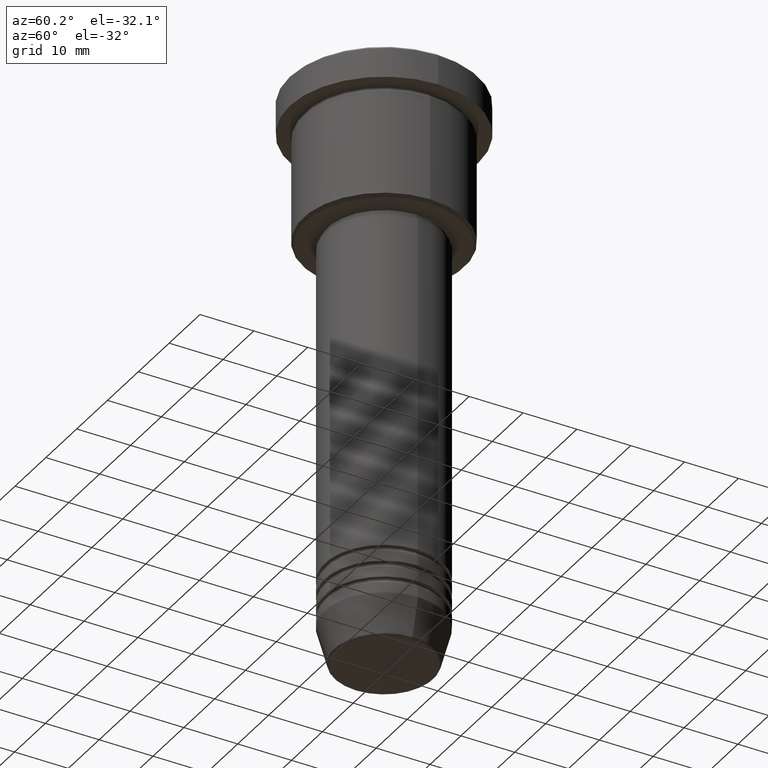
[diagram: clean part render]
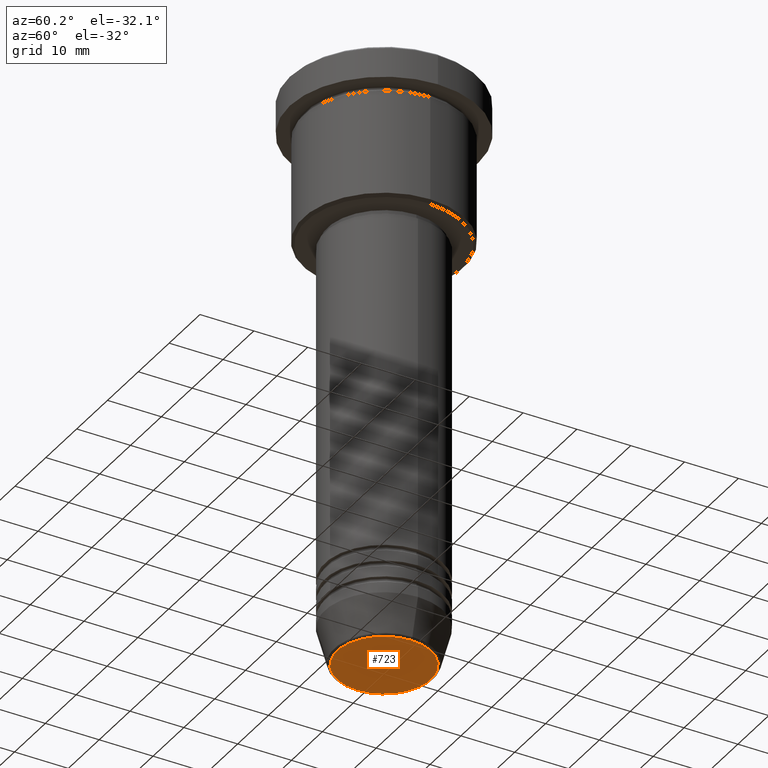
[diagram: same view with one face highlighted and labeled with its STEP entity id]
A machine part, auxiliary view. The second image highlights one B-rep face of the part: STEP entity #723.
In plain terms, the highlighted planar face has unit normal (0, -0, 1).
Its self-contained STEP definition (entity closure, byte-faithful):
#14 = DIRECTION ( 'NONE',  ( 0.000000000000000000, -0.000000000000000000, 1.000000000000000000 ) ) ;
#20 = VERTEX_POINT ( 'NONE', #1000 ) ;
#33 = AXIS2_PLACEMENT_3D ( 'NONE', #820, #450, #528 ) ;
#51 = DIRECTION ( 'NONE',  ( 0.000000000000000000, 0.000000000000000000, -1.000000000000000000 ) ) ;
#97 = EDGE_LOOP ( 'NONE', ( #1011, #1116 ) ) ;
#169 = CIRCLE ( 'NONE', #359, 8.740692158992656502 ) ;
#214 = CIRCLE ( 'NONE', #33, 8.740692158992656502 ) ;
#292 = PLANE ( 'NONE',  #711 ) ;
#359 = AXIS2_PLACEMENT_3D ( 'NONE', #515, #51, #785 ) ;
#450 = DIRECTION ( 'NONE',  ( 0.000000000000000000, 0.000000000000000000, -1.000000000000000000 ) ) ;
#480 = DIRECTION ( 'NONE',  ( 1.000000000000000000, 0.000000000000000000, 0.000000000000000000 ) ) ;
#515 = CARTESIAN_POINT ( 'NONE',  ( 0.000000000000000000, 0.000000000000000000, -107.0000000000000000 ) ) ;
#516 = EDGE_CURVE ( 'NONE', #20, #998, #169, .T. ) ;
#528 = DIRECTION ( 'NONE',  ( 1.000000000000000000, 0.000000000000000000, 0.000000000000000000 ) ) ;
#688 = EDGE_CURVE ( 'NONE', #998, #20, #214, .T. ) ;
#711 = AXIS2_PLACEMENT_3D ( 'NONE', #737, #14, #480 ) ;
#723 = ADVANCED_FACE ( 'NONE', ( #751 ), #292, .F. ) ;
#737 = CARTESIAN_POINT ( 'NONE',  ( 0.000000000000000000, 0.000000000000000000, -107.0000000000000000 ) ) ;
#751 = FACE_OUTER_BOUND ( 'NONE', #97, .T. ) ;
#785 = DIRECTION ( 'NONE',  ( 1.000000000000000000, 0.000000000000000000, 0.000000000000000000 ) ) ;
#820 = CARTESIAN_POINT ( 'NONE',  ( 0.000000000000000000, 0.000000000000000000, -107.0000000000000000 ) ) ;
#859 = CARTESIAN_POINT ( 'NONE',  ( 8.740692158992656502, 0.000000000000000000, -107.0000000000000000 ) ) ;
#998 = VERTEX_POINT ( 'NONE', #859 ) ;
#1000 = CARTESIAN_POINT ( 'NONE',  ( -8.740692158992656502, 1.099999016768739653E-15, -107.0000000000000000 ) ) ;
#1011 = ORIENTED_EDGE ( 'NONE', *, *, #688, .T. ) ;
#1116 = ORIENTED_EDGE ( 'NONE', *, *, #516, .T. ) ;